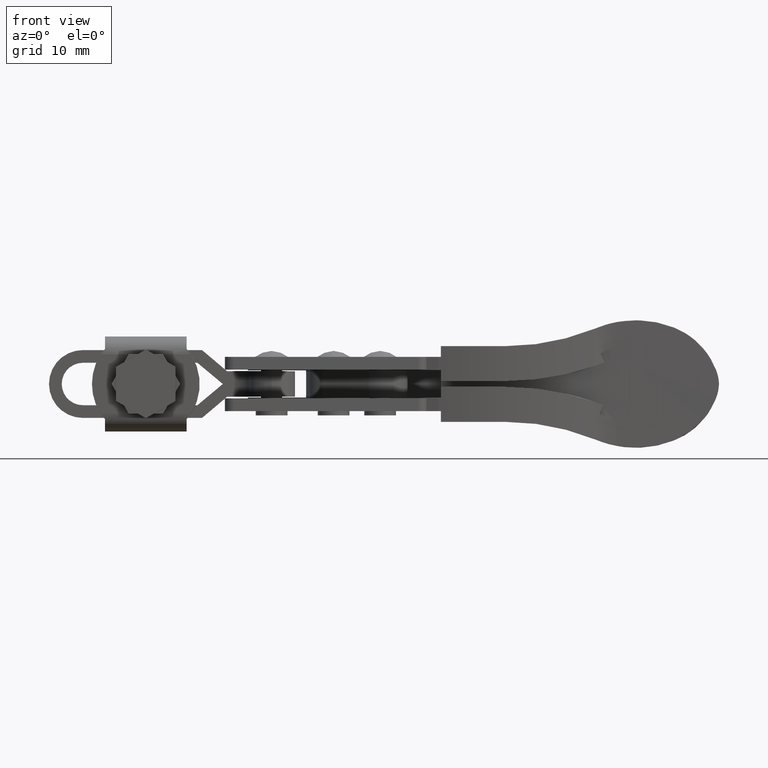
[diagram: clean part render]
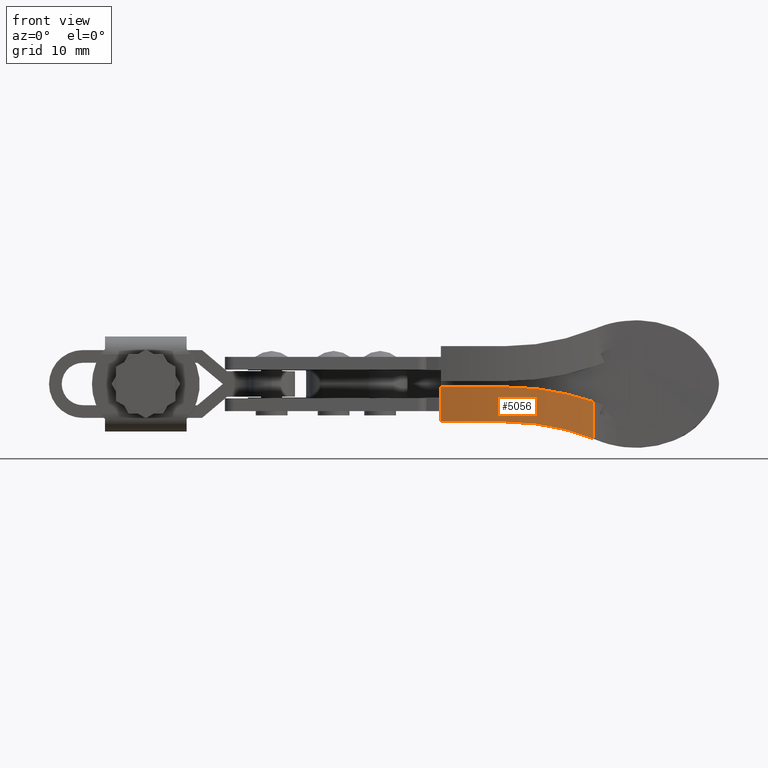
[diagram: same view with one face highlighted and labeled with its STEP entity id]
A machine part, front view. The second image highlights one B-rep face of the part: STEP entity #5056.
In plain terms, the highlighted cylindrical surface (partial cylindrical patch) has radius 36.26 mm, axis along (0, -0, -1).
Its self-contained STEP definition (entity closure, byte-faithful):
#25 = CIRCLE ( 'NONE', #3845, 36.25999999999997000 ) ;
#466 = CARTESIAN_POINT ( 'NONE',  ( 33.02382008349960800, 14.35379515615917800, -4.459999999999851600 ) ) ;
#800 = CARTESIAN_POINT ( 'NONE',  ( 40.15049334563513400, 15.20622523459379000, -1.084978403912440400 ) ) ;
#995 = CARTESIAN_POINT ( 'NONE',  ( 36.64500931277405700, 14.58598351286552800, -4.636592915457353700 ) ) ;
#999 = AXIS2_PLACEMENT_3D ( 'NONE', #7240, #8016, #1879 ) ;
#1167 = VERTEX_POINT ( 'NONE', #8555 ) ;
#1260 = LINE ( 'NONE', #2706, #2822 ) ;
#1335 = LINE ( 'NONE', #4197, #4951 ) ;
#1386 = VERTEX_POINT ( 'NONE', #6383 ) ;
#1466 = VERTEX_POINT ( 'NONE', #466 ) ;
#1574 = CARTESIAN_POINT ( 'NONE',  ( 36.64551771468533300, 14.61850140154870900, -0.5306600306908011400 ) ) ;
#1777 = CARTESIAN_POINT ( 'NONE',  ( 40.13506540806204000, 15.23618782888463800, -5.355718940737765400 ) ) ;
#1879 = DIRECTION ( 'NONE',  ( -0.9999986945244132600, 0.001615843268739772000, 0.0000000000000000000 ) ) ;
#1974 = VERTEX_POINT ( 'NONE', #8077 ) ;
#1976 = CARTESIAN_POINT ( 'NONE',  ( 32.08195217936769700, 50.60156039556618900, -4.459999999999851600 ) ) ;
#2015 = CIRCLE ( 'NONE', #2538, 36.25999999999997000 ) ;
#2231 = VERTEX_POINT ( 'NONE', #5389 ) ;
#2348 = CARTESIAN_POINT ( 'NONE',  ( 33.93453168999881300, 14.37745915405208000, -0.3399994071929368100 ) ) ;
#2537 = CARTESIAN_POINT ( 'NONE',  ( 42.67370873479386300, 15.91243565774073300, -6.145583018278552200 ) ) ;
#2538 = AXIS2_PLACEMENT_3D ( 'NONE', #1976, #7342, #2758 ) ;
#2651 = DIRECTION ( 'NONE',  ( 2.041693517150469300E-019, -9.875386707149082600E-023, -1.000000000000000000 ) ) ;
#2706 = CARTESIAN_POINT ( 'NONE',  ( 43.48645918748259500, 16.18172863784280200, -3.256806636758207100 ) ) ;
#2758 = DIRECTION ( 'NONE',  ( -0.9999986945244132600, 0.001615843268739772000, 0.0000000000000000000 ) ) ;
#2806 = EDGE_CURVE ( 'NONE', #2231, #1974, #6183, .T. ) ;
#2822 = VECTOR ( 'NONE', #6522, 1000.000000000000000 ) ;
#3105 = CARTESIAN_POINT ( 'NONE',  ( 43.48645918748259500, 16.18172863784280200, -2.077946922094803500 ) ) ;
#3425 = B_SPLINE_CURVE_WITH_KNOTS ( 'NONE', 3,
 ( #6338, #8652, #995, #6367, #1777, #7143, #2537, #7917 ),
 .UNSPECIFIED., .F., .F.,
 ( 4, 2, 2, 4 ),
 ( 0.0000000000000000000, 0.005414174075746854900, 0.008121261113620291400, 0.01082834815149372900 ),
 .UNSPECIFIED. ) ;
#3845 = AXIS2_PLACEMENT_3D ( 'NONE', #4067, #9448, #4853 ) ;
#4067 = CARTESIAN_POINT ( 'NONE',  ( 32.08195217936769700, 50.60156039556618900, -0.3399999999999026000 ) ) ;
#4197 = CARTESIAN_POINT ( 'NONE',  ( 25.45436304478386800, 14.95239964439080900, -4.989996320020373400 ) ) ;
#4648 = ORIENTED_EDGE ( 'NONE', *, *, #2806, .T. ) ;
#4853 = DIRECTION ( 'NONE',  ( 0.9999986945244132600, -0.001615843268739772000, 0.0000000000000000000 ) ) ;
#4907 = CARTESIAN_POINT ( 'NONE',  ( 25.45436304478386800, 14.95239964439080900, -4.459999999999851600 ) ) ;
#4951 = VECTOR ( 'NONE', #2651, 1000.000000000000000 ) ;
#5056 = ADVANCED_FACE ( 'NONE', ( #6099 ), #7652, .T. ) ;
#5123 = EDGE_CURVE ( 'NONE', #1466, #9270, #2015, .T. ) ;
#5389 = CARTESIAN_POINT ( 'NONE',  ( 43.48645918748259500, 16.18172863784280200, -2.077946922094803500 ) ) ;
#6099 = FACE_OUTER_BOUND ( 'NONE', #8772, .T. ) ;
#6176 = CARTESIAN_POINT ( 'NONE',  ( 37.53174590554917200, 14.74248587781822400, -0.6433655401422108100 ) ) ;
#6183 = B_SPLINE_CURVE_WITH_KNOTS ( 'NONE', 3,
 ( #3105, #8461, #800, #6176, #1574, #6960, #2348, #7717 ),
 .UNSPECIFIED., .F., .F.,
 ( 4, 2, 2, 4 ),
 ( 2.338107074486333300E-012, 0.005387049014864473900, 0.008080573521127648600, 0.01077409802739082200 ),
 .UNSPECIFIED. ) ;
#6338 = CARTESIAN_POINT ( 'NONE',  ( 33.02382008349960800, 14.35379515615917800, -4.459999999999851600 ) ) ;
#6367 = CARTESIAN_POINT ( 'NONE',  ( 39.26895194007499200, 15.04985788234321800, -5.144938017560270400 ) ) ;
#6383 = CARTESIAN_POINT ( 'NONE',  ( 25.45436304478386800, 14.95239964439080400, -0.3399999999999026000 ) ) ;
#6522 = DIRECTION ( 'NONE',  ( 2.041693517150469300E-019, -9.875386707149082600E-023, -1.000000000000000000 ) ) ;
#6960 = CARTESIAN_POINT ( 'NONE',  ( 34.84473398431588700, 14.43564133272018400, -0.3786534211775307000 ) ) ;
#7086 = EDGE_CURVE ( 'NONE', #1466, #1167, #3425, .T. ) ;
#7143 = CARTESIAN_POINT ( 'NONE',  ( 41.84137952085186600, 15.66854181112869600, -5.857284664626743800 ) ) ;
#7240 = CARTESIAN_POINT ( 'NONE',  ( 32.08195217936769700, 50.60156039556618900, -4.989996320020373400 ) ) ;
#7342 = DIRECTION ( 'NONE',  ( 2.041693517150469300E-019, -9.875386707149082600E-023, -1.000000000000000000 ) ) ;
#7349 = ORIENTED_EDGE ( 'NONE', *, *, #7086, .T. ) ;
#7652 = CYLINDRICAL_SURFACE ( 'NONE', #999, 36.25999999999997000 ) ;
#7717 = CARTESIAN_POINT ( 'NONE',  ( 33.02381680056044600, 14.35379507085488800, -0.3399999999999021600 ) ) ;
#7815 = EDGE_CURVE ( 'NONE', #2231, #1167, #1260, .T. ) ;
#7917 = CARTESIAN_POINT ( 'NONE',  ( 43.48645918748259500, 16.18172863784280200, -6.469701573009502700 ) ) ;
#8016 = DIRECTION ( 'NONE',  ( 2.041693517150469300E-019, -9.875386707149082600E-023, -1.000000000000000000 ) ) ;
#8077 = CARTESIAN_POINT ( 'NONE',  ( 33.02381680056044600, 14.35379507085488800, -0.3399999999999021600 ) ) ;
#8439 = ORIENTED_EDGE ( 'NONE', *, *, #7815, .F. ) ;
#8461 = CARTESIAN_POINT ( 'NONE',  ( 41.84331087693060900, 15.63729549274095700, -1.516699856099405200 ) ) ;
#8555 = CARTESIAN_POINT ( 'NONE',  ( 43.48645918748259500, 16.18172863784280200, -6.469701573009502700 ) ) ;
#8559 = ORIENTED_EDGE ( 'NONE', *, *, #9760, .T. ) ;
#8652 = CARTESIAN_POINT ( 'NONE',  ( 34.85607087436119400, 14.40140466258902000, -4.459999999999851600 ) ) ;
#8772 = EDGE_LOOP ( 'NONE', ( #9801, #8559, #9313, #7349, #8439, #4648 ) ) ;
#9270 = VERTEX_POINT ( 'NONE', #4907 ) ;
#9313 = ORIENTED_EDGE ( 'NONE', *, *, #5123, .F. ) ;
#9448 = DIRECTION ( 'NONE',  ( -2.041693517150469300E-019, 9.875386707149082600E-023, 1.000000000000000000 ) ) ;
#9633 = EDGE_CURVE ( 'NONE', #1386, #1974, #25, .T. ) ;
#9760 = EDGE_CURVE ( 'NONE', #1386, #9270, #1335, .T. ) ;
#9801 = ORIENTED_EDGE ( 'NONE', *, *, #9633, .F. ) ;